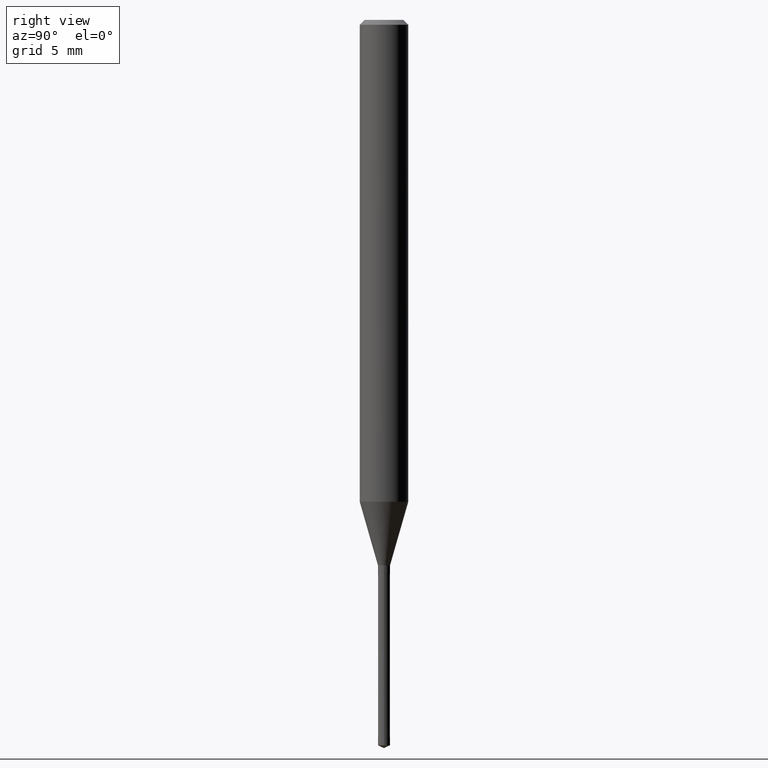
[diagram: clean part render]
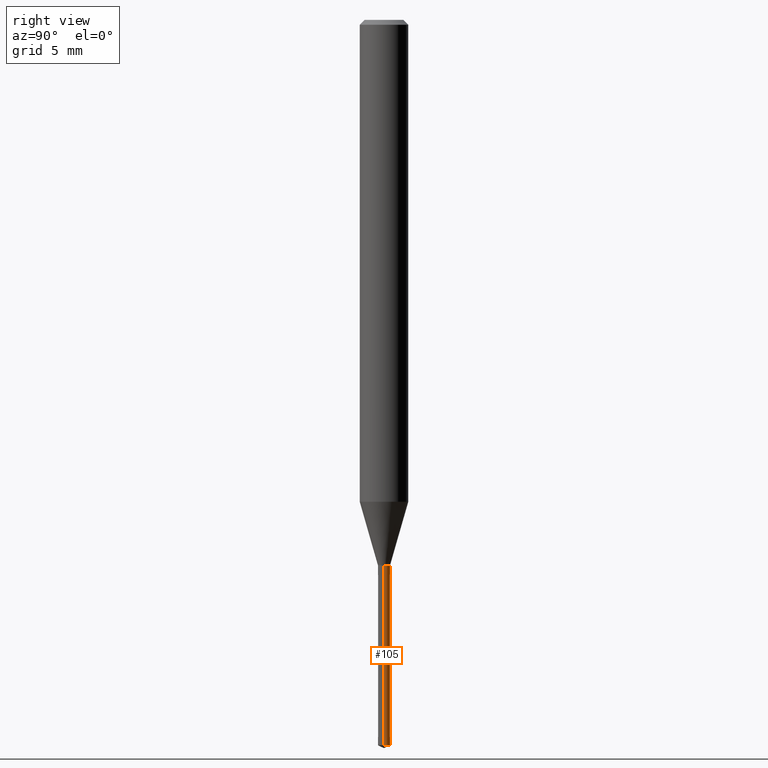
[diagram: same view with one face highlighted and labeled with its STEP entity id]
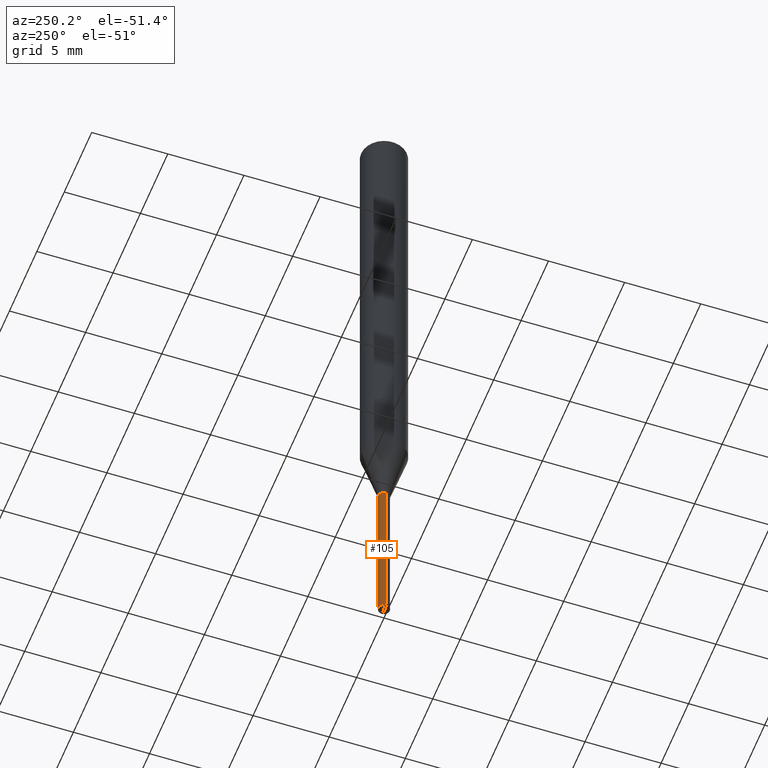
[diagram: same view with one face highlighted and labeled with its STEP entity id]
A machine part, right view. The second image highlights one B-rep face of the part: STEP entity #105.
A second angle (auxiliary view) of the same face is appended — the face is thin or edge-on in the first view.
In plain terms, the highlighted conical surface has half-angle 0.005 deg.
Its self-contained STEP definition (entity closure, byte-faithful):
#105=ADVANCED_FACE('',(#241),#242,.T.);
#117=EDGE_CURVE('',#143,#119,#256,.T.);
#119=VERTEX_POINT('',#258);
#121=VERTEX_POINT('',#260);
#143=VERTEX_POINT('',#285);
#145=VERTEX_POINT('',#287);
#165=EDGE_CURVE('',#145,#121,#310,.T.);
#167=EDGE_CURVE('',#121,#143,#312,.T.);
#205=EDGE_CURVE('',#145,#119,#355,.T.);
#241=FACE_OUTER_BOUND('',#387,.T.);
#242=CONICAL_SURFACE('',#388,0.3755,8.9886552438674E-005);
#256=LINE('',#404,#405);
#258=CARTESIAN_POINT('',(0.376,4.60451989037214E-017,-33.7));
#260=CARTESIAN_POINT('',(-0.375,0.0,-44.82513463));
#285=CARTESIAN_POINT('',(0.375,4.59227382683391E-017,-44.82513463));
#287=CARTESIAN_POINT('',(-0.376,0.0,-33.7));
#310=LINE('',#475,#476);
#312=CIRCLE('',#479,0.375);
#355=CIRCLE('',#533,0.376);
#387=EDGE_LOOP('',(#555,#556,#557,#558));
#388=AXIS2_PLACEMENT_3D('',#559,#560,#561);
#404=CARTESIAN_POINT('',(0.3755,4.59839685860303E-017,-39.262567315));
#405=VECTOR('',#578,1.0);
#475=CARTESIAN_POINT('',(-0.3755,-4.59839685860303E-017,-39.262567315));
#476=VECTOR('',#643,1.0);
#479=AXIS2_PLACEMENT_3D('',#644,#645,#646);
#533=AXIS2_PLACEMENT_3D('',#700,#701,#702);
#555=ORIENTED_EDGE('',*,*,#165,.F.);
#556=ORIENTED_EDGE('',*,*,#205,.T.);
#557=ORIENTED_EDGE('',*,*,#117,.F.);
#558=ORIENTED_EDGE('',*,*,#167,.F.);
#559=CARTESIAN_POINT('',(0.0,0.0,-39.262567315));
#560=DIRECTION('',(-0.0,-0.0,1.0));
#561=DIRECTION('',(-1.0,0.0,0.0));
#578=DIRECTION('',(8.98865523176329E-005,1.10075643091361E-020,0.999999995960204));
#643=DIRECTION('',(8.98865523176329E-005,1.10075643091361E-020,-0.999999995960204));
#644=CARTESIAN_POINT('',(0.0,0.0,-44.82513463));
#645=DIRECTION('',(0.0,0.0,-1.0));
#646=DIRECTION('',(-1.0,0.0,0.0));
#700=CARTESIAN_POINT('',(0.0,0.0,-33.7));
#701=DIRECTION('',(0.0,0.0,-1.0));
#702=DIRECTION('',(-1.0,0.0,0.0));